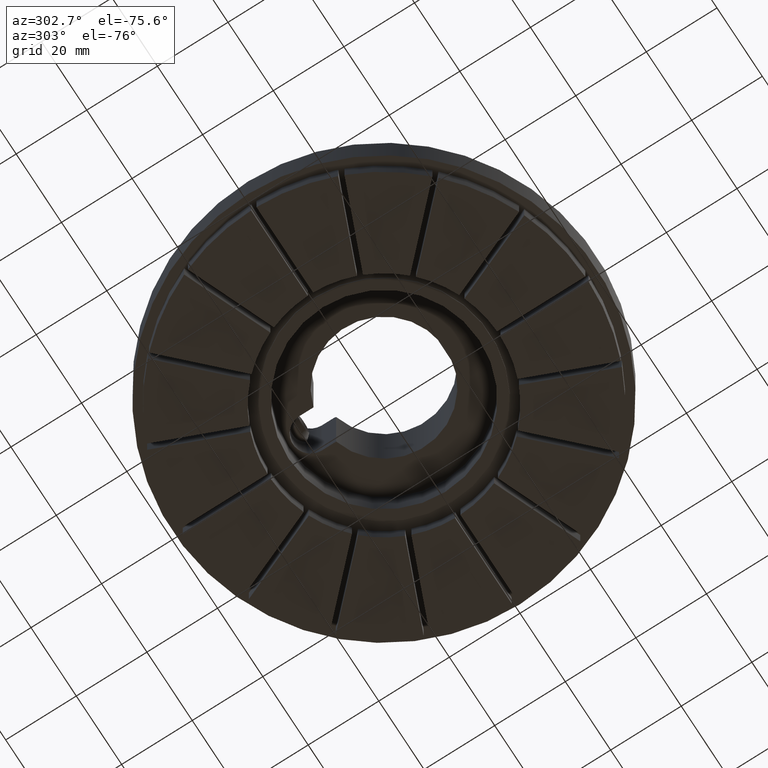
[diagram: clean part render]
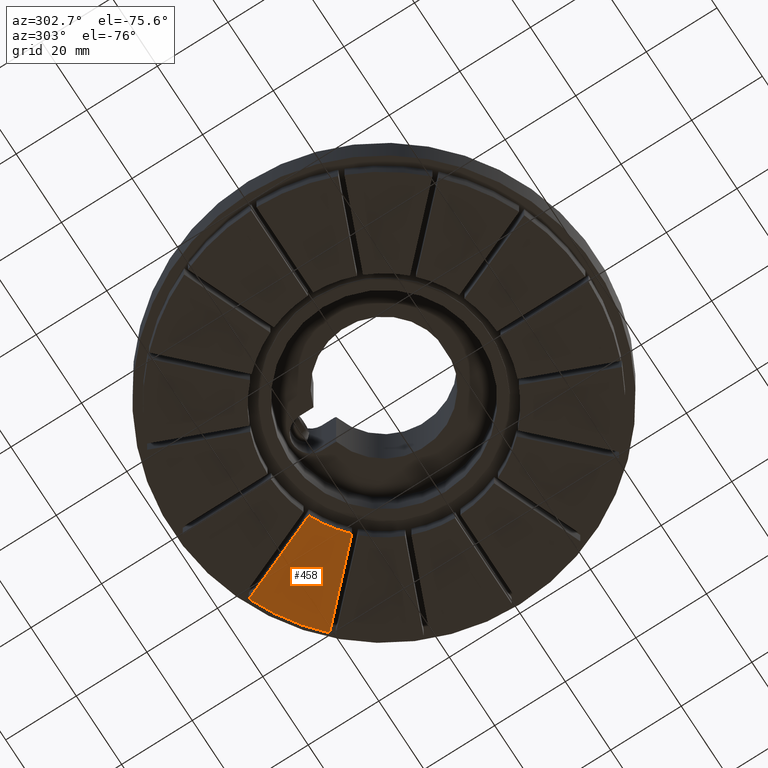
[diagram: same view with one face highlighted and labeled with its STEP entity id]
A machine part, auxiliary view. The second image highlights one B-rep face of the part: STEP entity #458.
In plain terms, the highlighted planar face has unit normal (0, 0, 1).
Its self-contained STEP definition (entity closure, byte-faithful):
#458 = ADVANCED_FACE( '', ( #710 ), #711, .F. );
#710 = FACE_OUTER_BOUND( '', #962, .T. );
#711 = PLANE( '', #963 );
#962 = EDGE_LOOP( '', ( #1766, #1767, #1768, #1769 ) );
#963 = AXIS2_PLACEMENT_3D( '', #1770, #1771, #1772 );
#1766 = ORIENTED_EDGE( '', *, *, #2016, .F. );
#1767 = ORIENTED_EDGE( '', *, *, #2027, .F. );
#1768 = ORIENTED_EDGE( '', *, *, #2025, .F. );
#1769 = ORIENTED_EDGE( '', *, *, #2023, .F. );
#1770 = CARTESIAN_POINT( '', ( 1.38777878078145E-014, 1.08420217248550E-016, 0.000000000000000 ) );
#1771 = DIRECTION( '', ( 0.000000000000000, -0.000000000000000, 1.00000000000000 ) );
#1772 = DIRECTION( '', ( 0.999914930218995, 0.0130434782608696, 0.000000000000000 ) );
#2016 = EDGE_CURVE( '', #2437, #2438, #2439, .T. );
#2023 = EDGE_CURVE( '', #2438, #2450, #2451, .T. );
#2025 = EDGE_CURVE( '', #2450, #2453, #2454, .T. );
#2027 = EDGE_CURVE( '', #2453, #2437, #2456, .T. );
#2437 = VERTEX_POINT( '', #3192 );
#2438 = VERTEX_POINT( '', #3193 );
#2439 = LINE( '', #3194, #3195 );
#2450 = VERTEX_POINT( '', #3210 );
#2451 = CIRCLE( '', #3211, 57.5000000000000 );
#2453 = VERTEX_POINT( '', #3214 );
#2454 = LINE( '', #3215, #3216 );
#2456 = CIRCLE( '', #3219, 32.5000000000000 );
#3192 = CARTESIAN_POINT( '', ( 32.4913450014000, 0.750000000000021, 0.000000000000000 ) );
#3193 = CARTESIAN_POINT( '', ( 57.4951084875922, 0.750000000000000, 0.000000000000000 ) );
#3194 = CARTESIAN_POINT( '', ( 32.4913450014000, 0.750000000000001, 0.000000000000000 ) );
#3195 = VECTOR( '', #3620, 1000.00000000000 );
#3210 = CARTESIAN_POINT( '', ( 53.4055665254762, 21.3095158108515, 0.000000000000000 ) );
#3211 = AXIS2_PLACEMENT_3D( '', #3631, #3632, #3633 );
#3214 = CARTESIAN_POINT( '', ( 30.3051012048301, 11.7409897779106, 0.000000000000000 ) );
#3215 = CARTESIAN_POINT( '', ( 53.4055665254763, 21.3095158108516, 0.000000000000000 ) );
#3216 = VECTOR( '', #3635, 1000.00000000000 );
#3219 = AXIS2_PLACEMENT_3D( '', #3637, #3638, #3639 );
#3620 = DIRECTION( '', ( 1.00000000000000, 1.73472347597681E-018, 0.000000000000000 ) );
#3631 = CARTESIAN_POINT( '', ( 1.38777878078145E-014, 1.08420217248550E-016, 0.000000000000000 ) );
#3632 = DIRECTION( '', ( 0.000000000000000, 0.000000000000000, 1.00000000000000 ) );
#3633 = DIRECTION( '', ( 1.00000000000000, -1.73472347597681E-018, 0.000000000000000 ) );
#3635 = DIRECTION( '', ( -0.923879532511287, -0.382683432365090, -0.000000000000000 ) );
#3637 = CARTESIAN_POINT( '', ( 1.38777878078145E-014, 1.08420217248550E-016, 0.000000000000000 ) );
#3638 = DIRECTION( '', ( 0.000000000000000, 0.000000000000000, -1.00000000000000 ) );
#3639 = DIRECTION( '', ( 1.00000000000000, 0.000000000000000, 0.000000000000000 ) );